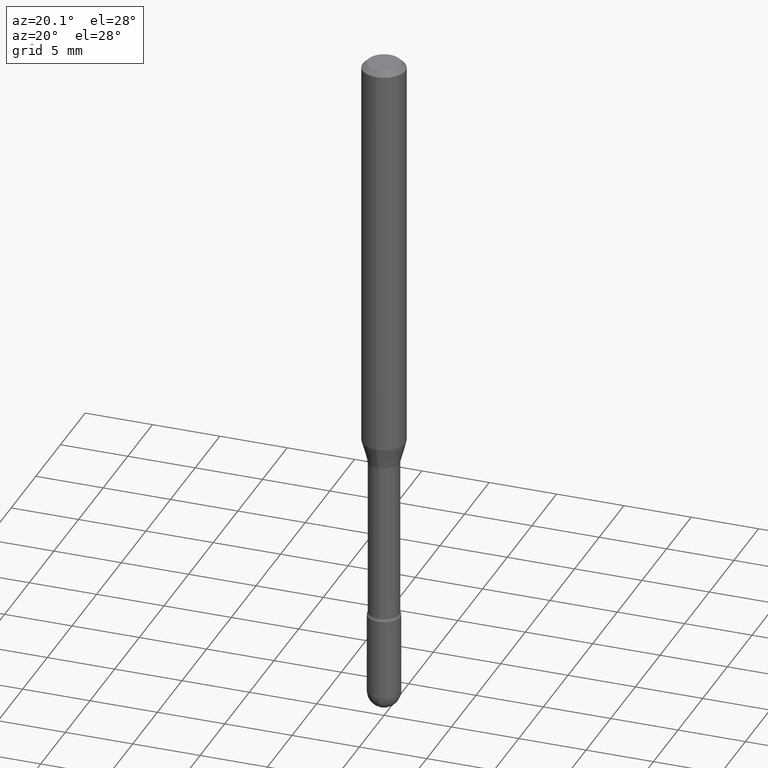
[diagram: clean part render]
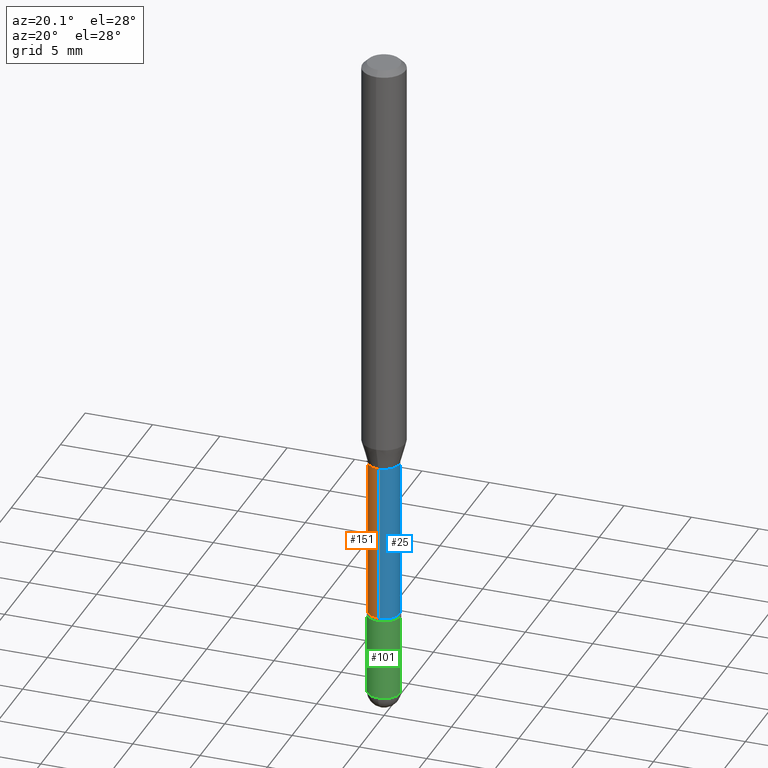
[diagram: same view with three faces highlighted in distinct colors, each labeled with its STEP entity id]
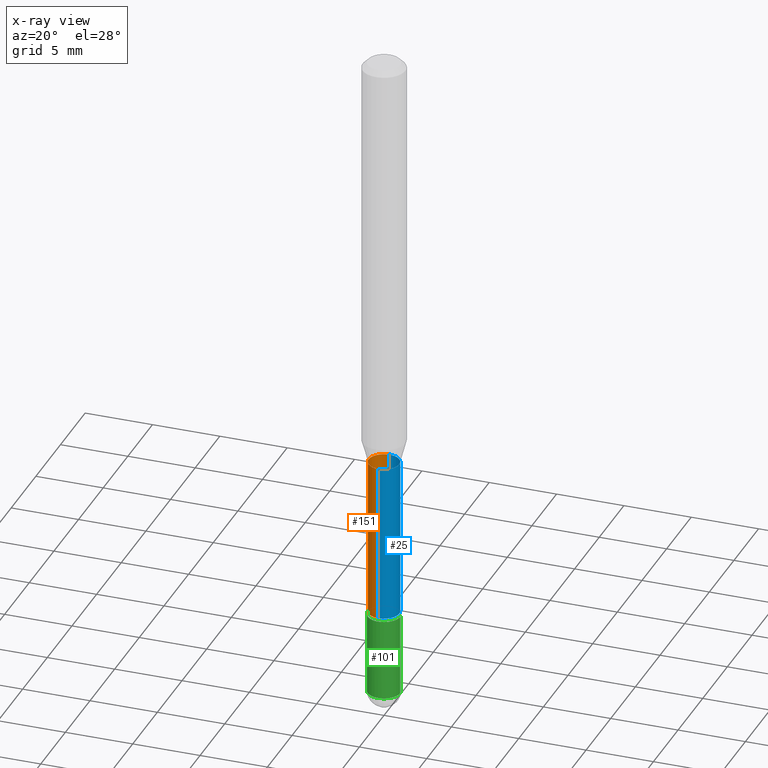
[diagram: x-ray of the same camera — body ghosted, the three highlighted faces saturated]
A machine part, auxiliary view with three faces highlighted in distinct colors.
The next image is the same camera in x-ray (body ghosted, the three faces saturated) — at least one of them is partly hidden behind the body in this view.
Their STEP definitions:

[orange] entity #151 — the highlighted cylindrical surface (edge-blend (fillet) strip) has radius 1.1341 mm, axis along (-0, 0, 1).
#9 = CARTESIAN_POINT ( 'NONE',  ( 3.273825655015081526E-16, 0.04464999999999410413, -1.706203551853163081 ) ) ;
#29 = CARTESIAN_POINT ( 'NONE',  ( -3.117892835586504621E-16, -0.04465000000000601821, -1.706203551853162415 ) ) ;
#31 = VERTEX_POINT ( 'NONE', #276 ) ;
#32 = LINE ( 'NONE', #380, #477 ) ;
#69 = FACE_OUTER_BOUND ( 'NONE', #548, .T. ) ;
#96 = ORIENTED_EDGE ( 'NONE', *, *, #228, .F. ) ;
#113 = VERTEX_POINT ( 'NONE', #9 ) ;
#135 = CARTESIAN_POINT ( 'NONE',  ( -3.117892835586920252E-16, -0.04465000000000003688, 6.339695486187031816E-16 ) ) ;
#138 = DIRECTION ( 'NONE',  ( -2.445445222880823255E-29, 3.491515111477200891E-15, 1.000000000000000000 ) ) ;
#151 = ADVANCED_FACE ( 'NONE', ( #69 ), #552, .T. ) ;
#152 = ORIENTED_EDGE ( 'NONE', *, *, #534, .F. ) ;
#165 = AXIS2_PLACEMENT_3D ( 'NONE', #504, #422, #249 ) ;
#196 = VERTEX_POINT ( 'NONE', #405 ) ;
#215 = DIRECTION ( 'NONE',  ( -2.445445222880823255E-29, 3.491515111477200891E-15, 1.000000000000000000 ) ) ;
#216 = VERTEX_POINT ( 'NONE', #29 ) ;
#224 = VECTOR ( 'NONE', #526, 39.37007874015748143 ) ;
#228 = EDGE_CURVE ( 'NONE', #113, #31, #32, .T. ) ;
#247 = DIRECTION ( 'NONE',  ( -2.445445222880823255E-29, 3.491515111477200891E-15, 1.000000000000000000 ) ) ;
#249 = DIRECTION ( 'NONE',  ( -6.982962677686265922E-15, -1.000000000000000000, 6.118360568117042054E-15 ) ) ;
#276 = CARTESIAN_POINT ( 'NONE',  ( 3.172573315169266568E-16, 0.04464999999999567232, -1.241974787463811181 ) ) ;
#277 = CIRCLE ( 'NONE', #165, 0.04465000000000006464 ) ;
#282 = ORIENTED_EDGE ( 'NONE', *, *, #287, .T. ) ;
#287 = EDGE_CURVE ( 'NONE', #113, #216, #277, .T. ) ;
#353 = ORIENTED_EDGE ( 'NONE', *, *, #523, .T. ) ;
#380 = CARTESIAN_POINT ( 'NONE',  ( 3.172573315168849457E-16, 0.04465000000000003688, 3.221772491637888956E-16 ) ) ;
#393 = AXIS2_PLACEMENT_3D ( 'NONE', #440, #138, #480 ) ;
#396 = LINE ( 'NONE', #135, #224 ) ;
#405 = CARTESIAN_POINT ( 'NONE',  ( -3.117892835586614568E-16, -0.04465000000000434593, -1.241974787463810737 ) ) ;
#409 = CIRCLE ( 'NONE', #393, 0.04465000000000000913 ) ;
#420 = DIRECTION ( 'NONE',  ( -6.982962677686265922E-15, -1.000000000000000000, 3.491515111477200891E-15 ) ) ;
#422 = DIRECTION ( 'NONE',  ( -2.445445222880823255E-29, 3.491515111477200891E-15, 1.000000000000000000 ) ) ;
#427 = AXIS2_PLACEMENT_3D ( 'NONE', #511, #247, #420 ) ;
#440 = CARTESIAN_POINT ( 'NONE',  ( 3.037181310941802135E-29, -4.336373738503580574E-15, -1.241974787463810959 ) ) ;
#477 = VECTOR ( 'NONE', #215, 39.37007874015748143 ) ;
#480 = DIRECTION ( 'NONE',  ( -6.982962677686265922E-15, -1.000000000000000000, 6.118360568117049942E-15 ) ) ;
#504 = CARTESIAN_POINT ( 'NONE',  ( 4.172427325141609199E-29, -5.957235484551391141E-15, -1.706203551853162859 ) ) ;
#511 = CARTESIAN_POINT ( 'NONE',  ( -1.169113584055446105E-44, 1.669184350826100908E-30, 4.780733988912460139E-16 ) ) ;
#523 = EDGE_CURVE ( 'NONE', #216, #196, #396, .T. ) ;
#526 = DIRECTION ( 'NONE',  ( -2.445445222880823255E-29, 3.491515111477200891E-15, 1.000000000000000000 ) ) ;
#534 = EDGE_CURVE ( 'NONE', #31, #196, #409, .T. ) ;
#548 = EDGE_LOOP ( 'NONE', ( #96, #282, #353, #152 ) ) ;
#552 = CYLINDRICAL_SURFACE ( 'NONE', #427, 0.04465000000000003688 ) ;

[blue] entity #25 — the highlighted cylindrical surface (edge-blend (fillet) strip) has radius 1.1341 mm, axis along (-0, 0, 1).
#9 = CARTESIAN_POINT ( 'NONE',  ( 3.273825655015081526E-16, 0.04464999999999410413, -1.706203551853163081 ) ) ;
#25 = ADVANCED_FACE ( 'NONE', ( #490 ), #543, .T. ) ;
#29 = CARTESIAN_POINT ( 'NONE',  ( -3.117892835586504621E-16, -0.04465000000000601821, -1.706203551853162415 ) ) ;
#31 = VERTEX_POINT ( 'NONE', #276 ) ;
#32 = LINE ( 'NONE', #380, #477 ) ;
#55 = ORIENTED_EDGE ( 'NONE', *, *, #228, .T. ) ;
#74 = ORIENTED_EDGE ( 'NONE', *, *, #523, .F. ) ;
#76 = AXIS2_PLACEMENT_3D ( 'NONE', #281, #106, #449 ) ;
#86 = CARTESIAN_POINT ( 'NONE',  ( 4.172427325141609199E-29, -5.957235484551391141E-15, -1.706203551853162859 ) ) ;
#106 = DIRECTION ( 'NONE',  ( -2.445445222880823255E-29, 3.491515111477200891E-15, 1.000000000000000000 ) ) ;
#112 = DIRECTION ( 'NONE',  ( -2.445445222880823255E-29, 3.491515111477200891E-15, 1.000000000000000000 ) ) ;
#113 = VERTEX_POINT ( 'NONE', #9 ) ;
#132 = EDGE_CURVE ( 'NONE', #196, #31, #157, .T. ) ;
#135 = CARTESIAN_POINT ( 'NONE',  ( -3.117892835586920252E-16, -0.04465000000000003688, 6.339695486187031816E-16 ) ) ;
#157 = CIRCLE ( 'NONE', #312, 0.04465000000000000913 ) ;
#196 = VERTEX_POINT ( 'NONE', #405 ) ;
#215 = DIRECTION ( 'NONE',  ( -2.445445222880823255E-29, 3.491515111477200891E-15, 1.000000000000000000 ) ) ;
#216 = VERTEX_POINT ( 'NONE', #29 ) ;
#224 = VECTOR ( 'NONE', #526, 39.37007874015748143 ) ;
#228 = EDGE_CURVE ( 'NONE', #113, #31, #32, .T. ) ;
#264 = DIRECTION ( 'NONE',  ( -6.982962677686265922E-15, -1.000000000000000000, 6.118360568117042054E-15 ) ) ;
#276 = CARTESIAN_POINT ( 'NONE',  ( 3.172573315169266568E-16, 0.04464999999999567232, -1.241974787463811181 ) ) ;
#281 = CARTESIAN_POINT ( 'NONE',  ( -1.169113584055446105E-44, 1.669184350826100908E-30, 4.780733988912460139E-16 ) ) ;
#285 = DIRECTION ( 'NONE',  ( -6.982962677686265922E-15, -1.000000000000000000, 6.118360568117049942E-15 ) ) ;
#300 = AXIS2_PLACEMENT_3D ( 'NONE', #86, #442, #264 ) ;
#312 = AXIS2_PLACEMENT_3D ( 'NONE', #465, #112, #285 ) ;
#329 = CIRCLE ( 'NONE', #300, 0.04465000000000006464 ) ;
#330 = ORIENTED_EDGE ( 'NONE', *, *, #379, .T. ) ;
#377 = ORIENTED_EDGE ( 'NONE', *, *, #132, .F. ) ;
#379 = EDGE_CURVE ( 'NONE', #216, #113, #329, .T. ) ;
#380 = CARTESIAN_POINT ( 'NONE',  ( 3.172573315168849457E-16, 0.04465000000000003688, 3.221772491637888956E-16 ) ) ;
#396 = LINE ( 'NONE', #135, #224 ) ;
#405 = CARTESIAN_POINT ( 'NONE',  ( -3.117892835586614568E-16, -0.04465000000000434593, -1.241974787463810737 ) ) ;
#442 = DIRECTION ( 'NONE',  ( -2.445445222880823255E-29, 3.491515111477200891E-15, 1.000000000000000000 ) ) ;
#449 = DIRECTION ( 'NONE',  ( -6.982962677686265922E-15, -1.000000000000000000, 3.491515111477200891E-15 ) ) ;
#455 = EDGE_LOOP ( 'NONE', ( #330, #55, #377, #74 ) ) ;
#465 = CARTESIAN_POINT ( 'NONE',  ( 3.037181310941802135E-29, -4.336373738503580574E-15, -1.241974787463810959 ) ) ;
#477 = VECTOR ( 'NONE', #215, 39.37007874015748143 ) ;
#490 = FACE_OUTER_BOUND ( 'NONE', #455, .T. ) ;
#523 = EDGE_CURVE ( 'NONE', #216, #196, #396, .T. ) ;
#526 = DIRECTION ( 'NONE',  ( -2.445445222880823255E-29, 3.491515111477200891E-15, 1.000000000000000000 ) ) ;
#543 = CYLINDRICAL_SURFACE ( 'NONE', #76, 0.04465000000000003688 ) ;

[green] entity #101 — the highlighted cylindrical surface (edge-blend (fillet) strip) has radius 1.2065 mm, axis along (-0, 0, 1).
#10 = ORIENTED_EDGE ( 'NONE', *, *, #204, .T. ) ;
#23 = VERTEX_POINT ( 'NONE', #542 ) ;
#36 = CARTESIAN_POINT ( 'NONE',  ( 0.04749999999999999362, -6.319581223306092199E-15, -1.715000000000000080 ) ) ;
#53 = DIRECTION ( 'NONE',  ( 1.000000000000000000, -6.982962677686260400E-15, 0.000000000000000000 ) ) ;
#81 = DIRECTION ( 'NONE',  ( 1.000000000000000000, -6.982962677686260400E-15, 0.000000000000000000 ) ) ;
#88 = CARTESIAN_POINT ( 'NONE',  ( 0.000000000000000000, 0.000000000000000000, 0.000000000000000000 ) ) ;
#98 = CARTESIAN_POINT ( 'NONE',  ( 4.774777844076478914E-29, -6.817117314091241226E-15, -1.952499999999999902 ) ) ;
#101 = ADVANCED_FACE ( 'NONE', ( #318 ), #483, .T. ) ;
#116 = CARTESIAN_POINT ( 'NONE',  ( 0.04750000000000000749, -3.316907271900977082E-16, 2.316183968503069432E-30 ) ) ;
#155 = EDGE_CURVE ( 'NONE', #546, #286, #392, .T. ) ;
#160 = DIRECTION ( 'NONE',  ( -2.445468806185136877E-29, 3.491481338843145188E-15, 1.000000000000000000 ) ) ;
#166 = AXIS2_PLACEMENT_3D ( 'NONE', #351, #262, #81 ) ;
#168 = CARTESIAN_POINT ( 'NONE',  ( 4.193979002607509757E-29, -5.987890496115994688E-15, -1.715000000000000080 ) ) ;
#170 = DIRECTION ( 'NONE',  ( -2.445468806185136597E-29, 3.491481338843145583E-15, 1.000000000000000000 ) ) ;
#188 = DIRECTION ( 'NONE',  ( 1.000000000000000000, -6.982962677686266711E-15, 4.876176775795934672E-29 ) ) ;
#190 = ORIENTED_EDGE ( 'NONE', *, *, #406, .T. ) ;
#199 = EDGE_LOOP ( 'NONE', ( #200, #190, #10, #323, #374 ) ) ;
#200 = ORIENTED_EDGE ( 'NONE', *, *, #524, .F. ) ;
#204 = EDGE_CURVE ( 'NONE', #507, #252, #471, .T. ) ;
#212 = VECTOR ( 'NONE', #160, 39.37007874015748143 ) ;
#223 = AXIS2_PLACEMENT_3D ( 'NONE', #168, #170, #342 ) ;
#252 = VERTEX_POINT ( 'NONE', #464 ) ;
#262 = DIRECTION ( 'NONE',  ( -2.445468806185136597E-29, 3.491481338843145583E-15, 1.000000000000000000 ) ) ;
#267 = CARTESIAN_POINT ( 'NONE',  ( -3.375077994859997675E-16, -0.04750000000000682149, -1.952499999999999680 ) ) ;
#286 = VERTEX_POINT ( 'NONE', #36 ) ;
#304 = CARTESIAN_POINT ( 'NONE',  ( -0.04750000000000000749, 3.375077994860476415E-16, -2.336494167871080260E-30 ) ) ;
#310 = EDGE_CURVE ( 'NONE', #252, #286, #547, .T. ) ;
#311 = DIRECTION ( 'NONE',  ( -2.445468806185136877E-29, 3.491481338843145188E-15, 1.000000000000000000 ) ) ;
#318 = FACE_OUTER_BOUND ( 'NONE', #199, .T. ) ;
#323 = ORIENTED_EDGE ( 'NONE', *, *, #310, .T. ) ;
#342 = DIRECTION ( 'NONE',  ( 1.000000000000000000, -6.982962677686261977E-15, 0.000000000000000000 ) ) ;
#351 = CARTESIAN_POINT ( 'NONE',  ( 4.774777844076478914E-29, -6.817117314091241226E-15, -1.952499999999999902 ) ) ;
#356 = AXIS2_PLACEMENT_3D ( 'NONE', #88, #444, #188 ) ;
#358 = CIRCLE ( 'NONE', #166, 0.04750000000000000749 ) ;
#374 = ORIENTED_EDGE ( 'NONE', *, *, #155, .F. ) ;
#392 = CIRCLE ( 'NONE', #223, 0.04749999999999999362 ) ;
#406 = EDGE_CURVE ( 'NONE', #23, #507, #358, .T. ) ;
#444 = DIRECTION ( 'NONE',  ( -2.445468806185136597E-29, 3.491481338843145583E-15, 1.000000000000000000 ) ) ;
#448 = DIRECTION ( 'NONE',  ( -2.445468806185136597E-29, 3.491481338843145583E-15, 1.000000000000000000 ) ) ;
#453 = AXIS2_PLACEMENT_3D ( 'NONE', #98, #448, #53 ) ;
#464 = CARTESIAN_POINT ( 'NONE',  ( 0.04750000000000000749, -6.734194632293715468E-15, -1.952499999999999902 ) ) ;
#471 = CIRCLE ( 'NONE', #453, 0.04750000000000000749 ) ;
#473 = CARTESIAN_POINT ( 'NONE',  ( -0.04749999999999999362, -6.064996105617570464E-15, -1.715000000000000080 ) ) ;
#482 = LINE ( 'NONE', #304, #506 ) ;
#483 = CYLINDRICAL_SURFACE ( 'NONE', #356, 0.04750000000000000749 ) ;
#506 = VECTOR ( 'NONE', #311, 39.37007874015748143 ) ;
#507 = VERTEX_POINT ( 'NONE', #267 ) ;
#524 = EDGE_CURVE ( 'NONE', #23, #546, #482, .T. ) ;
#542 = CARTESIAN_POINT ( 'NONE',  ( -0.04750000000000000749, -6.064996105617570464E-15, -1.952499999999999902 ) ) ;
#546 = VERTEX_POINT ( 'NONE', #473 ) ;
#547 = LINE ( 'NONE', #116, #212 ) ;